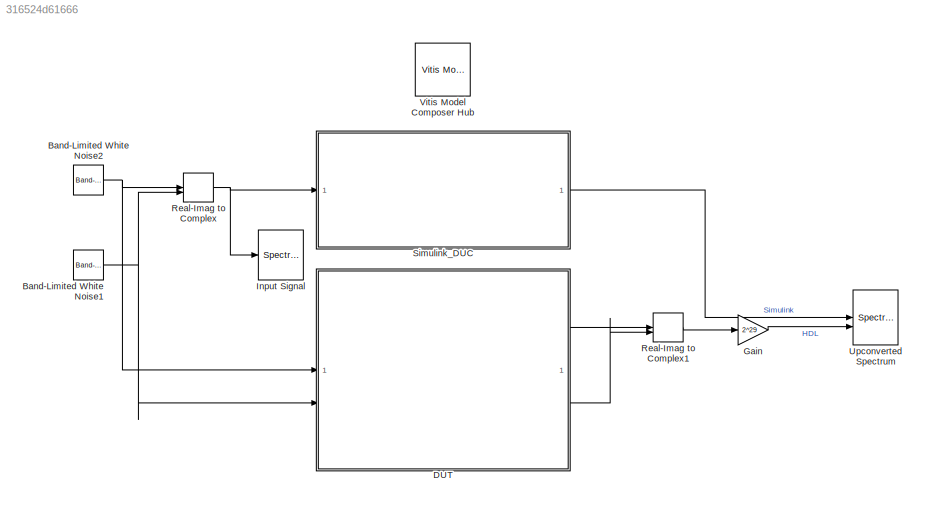
MODEL slx_316524d61666
KIND model
CONFIG AbsTol = auto
CONFIG EnableMultiTasking = off
CONFIG FixedStep = auto
CONFIG InitFcn = sample_period=1/800e6;\ndds=80e6; % ddfs frequency
CONFIG MaxStep = auto
CONFIG MinStep = auto
CONFIG PreLoadFcn = sample_period=1/800e6;\ndds=80e6; % ddfs frequency
CONFIG RelTol = 1e-3
CONFIG SampleTimeConstraint = Unconstrained
CONFIG SolverName = VariableStepAuto
CONFIG StartTime = 0.0
CONFIG StopTime = sample_period*512*150
BLOCK [Reference] Band-Limited White Noise1  REF=simulink/Sources/Band-Limited
White Noise
  SourceBlock = simulink/Sources/Band-Limited\nWhite Noise
  SourceType = Band-Limited White Noise.
BLOCK [Reference] Band-Limited White Noise2  REF=simulink/Sources/Band-Limited
White Noise
  SourceBlock = simulink/Sources/Band-Limited\nWhite Noise
  SourceType = Band-Limited White Noise.
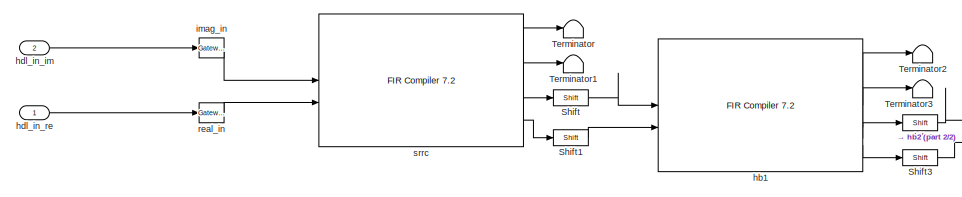
[diagram: DUT - part 1/2, middle left region]
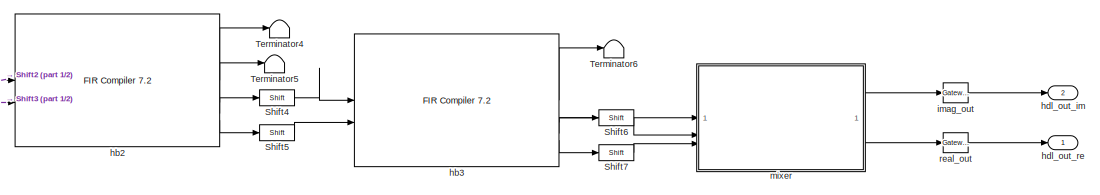
[diagram: DUT - part 2/2, middle right region]
BLOCK [SubSystem] DUT
BLOCK [Reference] DUT/Shift  REF=hdlBasic/Shift
  SourceBlock = hdlBasic/Shift
  SourceType = Binary Shift Operator Block
BLOCK [Reference] DUT/Shift1  REF=hdlBasic/Shift
  SourceBlock = hdlBasic/Shift
  SourceType = Binary Shift Operator Block
BLOCK [Reference] DUT/Shift2  REF=hdlBasic/Shift
  SourceBlock = hdlBasic/Shift
  SourceType = Binary Shift Operator Block
BLOCK [Reference] DUT/Shift3  REF=hdlBasic/Shift
  SourceBlock = hdlBasic/Shift
  SourceType = Binary Shift Operator Block
BLOCK [Reference] DUT/Shift4  REF=hdlBasic/Shift
  SourceBlock = hdlBasic/Shift
  SourceType = Binary Shift Operator Block
BLOCK [Reference] DUT/Shift5  REF=hdlBasic/Shift
  SourceBlock = hdlBasic/Shift
  SourceType = Binary Shift Operator Block
BLOCK [Reference] DUT/Shift6  REF=hdlBasic/Shift
  SourceBlock = hdlBasic/Shift
  SourceType = Binary Shift Operator Block
BLOCK [Reference] DUT/Shift7  REF=hdlBasic/Shift
  SourceBlock = hdlBasic/Shift
  SourceType = Binary Shift Operator Block
BLOCK [Terminator] DUT/Terminator
BLOCK [Terminator] DUT/Terminator1
BLOCK [Terminator] DUT/Terminator2
BLOCK [Terminator] DUT/Terminator3
BLOCK [Terminator] DUT/Terminator4
BLOCK [Terminator] DUT/Terminator5
BLOCK [Terminator] DUT/Terminator6
BLOCK [Reference] DUT/hb1  REF=hdlDSPIP/FIR Compiler 7.2 
  SourceBlock = hdlDSPIP/FIR Compiler 7.2
  SourceType = FIR Compiler 7.2 Block
BLOCK [Reference] DUT/hb2  REF=hdlDSPIP/FIR Compiler 7.2 
  SourceBlock = hdlDSPIP/FIR Compiler 7.2
  SourceType = FIR Compiler 7.2 Block
BLOCK [Reference] DUT/hb3  REF=hdlDSPIP/FIR Compiler 7.2 
  SourceBlock = hdlDSPIP/FIR Compiler 7.2
  SourceType = FIR Compiler 7.2 Block
BLOCK [Inport] DUT/hdl_in_im
  Port = 2
BLOCK [Inport] DUT/hdl_in_re
BLOCK [Outport] DUT/hdl_out_im
  Port = 2
BLOCK [Outport] DUT/hdl_out_re
BLOCK [Reference] DUT/imag_in  REF=hdlBasic/Gateway In
  SourceBlock = hdlBasic/Gateway In
  SourceType = Gateway In Block
BLOCK [Reference] DUT/imag_out  REF=hdlBasic/Gateway Out
  SourceBlock = hdlBasic/Gateway Out
  SourceType = Gateway Out Block
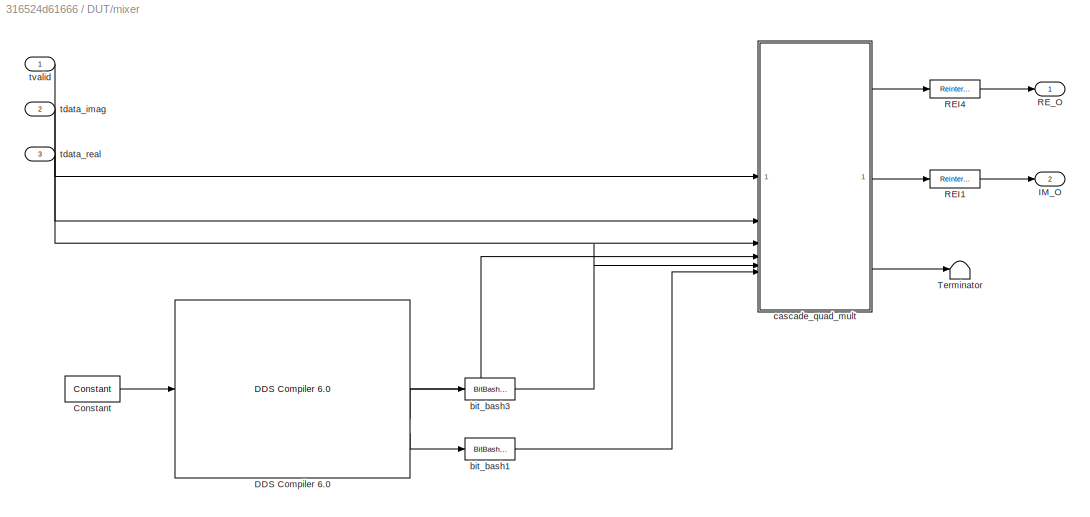
BLOCK [SubSystem] DUT/mixer
BLOCK [Reference] DUT/mixer/Constant  REF=hdlBasic/Constant
  SourceBlock = hdlBasic/Constant
  SourceType = Constant Block Block
BLOCK [Reference] DUT/mixer/DDS Compiler 6.0  REF=hdlDSPIP/DDS Compiler 6.0 
  SourceBlock = hdlDSPIP/DDS Compiler 6.0
  SourceType = DDS Compiler 6.0 Block
BLOCK [Outport] DUT/mixer/IM_O
  Port = 2
BLOCK [Reference] DUT/mixer/REI1  REF=hdlBasic/Reinterpret
  SourceBlock = hdlBasic/Reinterpret
  SourceType = Type Reinterpreter Block
BLOCK [Reference] DUT/mixer/REI4  REF=hdlBasic/Reinterpret
  SourceBlock = hdlBasic/Reinterpret
  SourceType = Type Reinterpreter Block
BLOCK [Outport] DUT/mixer/RE_O
BLOCK [Terminator] DUT/mixer/Terminator
BLOCK [Reference] DUT/mixer/bit_bash1  REF=hdlBasic/BitBasher
  SourceBlock = hdlBasic/BitBasher
  SourceType = BitBasher Block
BLOCK [Reference] DUT/mixer/bit_bash3  REF=hdlBasic/BitBasher
  SourceBlock = hdlBasic/BitBasher
  SourceType = BitBasher Block
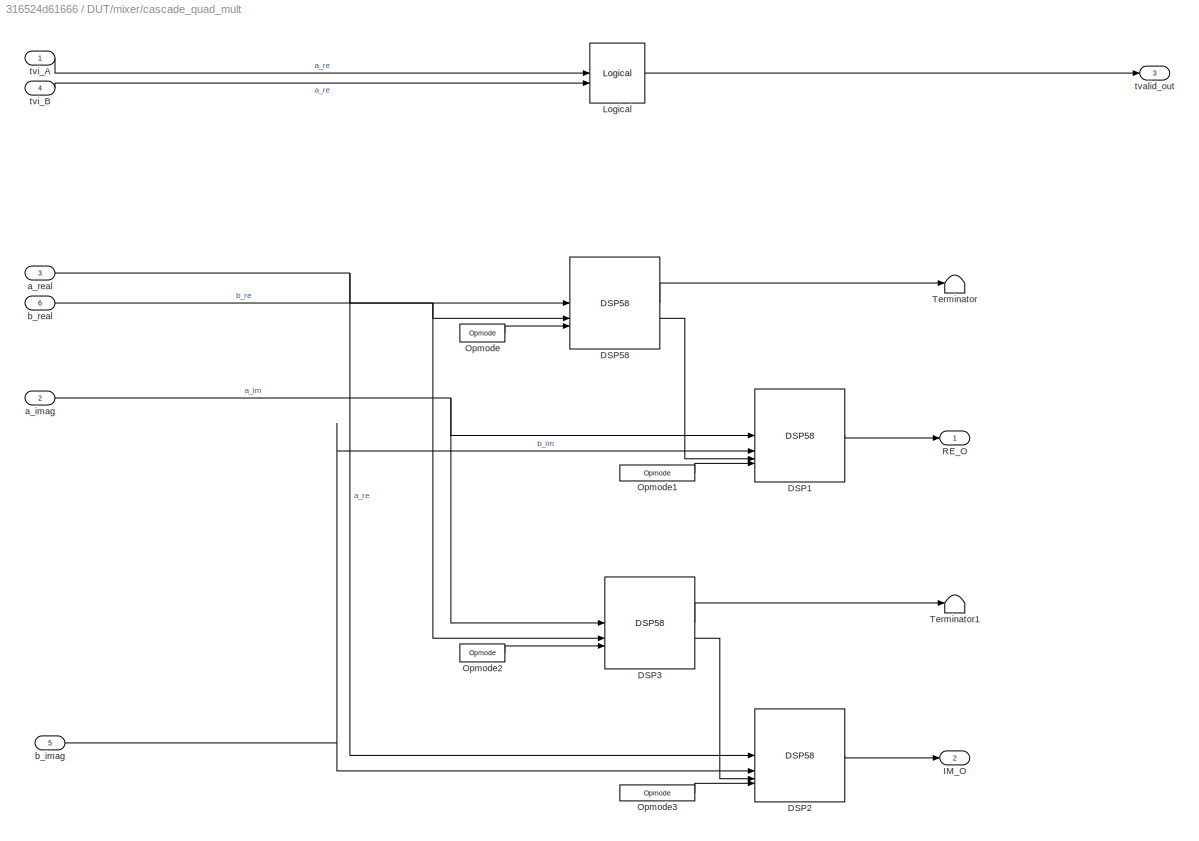
BLOCK [SubSystem] DUT/mixer/cascade_quad_mult
BLOCK [Reference] DUT/mixer/cascade_quad_mult/DSP1  REF=hdlBasic/DSP58 
  SourceBlock = hdlBasic/DSP58
  SourceType = DSP58 Block
BLOCK [Reference] DUT/mixer/cascade_quad_mult/DSP2  REF=hdlBasic/DSP58 
  SourceBlock = hdlBasic/DSP58
  SourceType = DSP58 Block
BLOCK [Reference] DUT/mixer/cascade_quad_mult/DSP3  REF=hdlBasic/DSP58 
  SourceBlock = hdlBasic/DSP58
  SourceType = DSP58 Block
BLOCK [Reference] DUT/mixer/cascade_quad_mult/DSP58  REF=hdlBasic/DSP58 
  SourceBlock = hdlBasic/DSP58
  SourceType = DSP58 Block
BLOCK [Outport] DUT/mixer/cascade_quad_mult/IM_O
  Port = 2
BLOCK [Reference] DUT/mixer/cascade_quad_mult/Logical  REF=hdlBasic/Logical
  SourceBlock = hdlBasic/Logical
  SourceType = Logical Block Block
BLOCK [Reference] DUT/mixer/cascade_quad_mult/Opmode  REF=hdlBasic/Opmode
  SourceBlock = hdlBasic/Opmode
  SourceType = Instruction Block Block
BLOCK [Reference] DUT/mixer/cascade_quad_mult/Opmode1  REF=hdlBasic/Opmode
  SourceBlock = hdlBasic/Opmode
  SourceType = Instruction Block Block
BLOCK [Reference] DUT/mixer/cascade_quad_mult/Opmode2  REF=hdlBasic/Opmode
  SourceBlock = hdlBasic/Opmode
  SourceType = Instruction Block Block
BLOCK [Reference] DUT/mixer/cascade_quad_mult/Opmode3  REF=hdlBasic/Opmode
  SourceBlock = hdlBasic/Opmode
  SourceType = Instruction Block Block
BLOCK [Outport] DUT/mixer/cascade_quad_mult/RE_O
BLOCK [Terminator] DUT/mixer/cascade_quad_mult/Terminator
BLOCK [Terminator] DUT/mixer/cascade_quad_mult/Terminator1
BLOCK [Inport] DUT/mixer/cascade_quad_mult/a_imag
  Port = 2
BLOCK [Inport] DUT/mixer/cascade_quad_mult/a_real
  Port = 3
BLOCK [Inport] DUT/mixer/cascade_quad_mult/b_imag
  Port = 5
BLOCK [Inport] DUT/mixer/cascade_quad_mult/b_real
  Port = 6
BLOCK [Outport] DUT/mixer/cascade_quad_mult/tvalid_out
  Port = 3
BLOCK [Inport] DUT/mixer/cascade_quad_mult/tvi_A
BLOCK [Inport] DUT/mixer/cascade_quad_mult/tvi_B
  Port = 4
BLOCK [Inport] DUT/mixer/tdata_imag
  Port = 2
BLOCK [Inport] DUT/mixer/tdata_real
  Port = 3
BLOCK [Inport] DUT/mixer/tvalid
BLOCK [Reference] DUT/real_in  REF=hdlBasic/Gateway In
  SourceBlock = hdlBasic/Gateway In
  SourceType = Gateway In Block
BLOCK [Reference] DUT/real_out  REF=hdlBasic/Gateway Out
  SourceBlock = hdlBasic/Gateway Out
  SourceType = Gateway Out Block
BLOCK [Reference] DUT/srrc  REF=hdlDSPIP/FIR Compiler 7.2 
  SourceBlock = hdlDSPIP/FIR Compiler 7.2
  SourceType = FIR Compiler 7.2 Block
BLOCK [Gain] Gain
  Gain = 2^29
  OutDataTypeStr = double
BLOCK [SpectrumAnalyzer] Input Signal
  GraphicalSettings = {"GraphicalSettings":{"Style":{"BackgroundColor":[0.12941176470588237,0.12941176470588237,0.12941176470588237],"AxesColor":[0.070588235294117646,0.070588235294117646,0.070588235294117646],"LabelsColor":[0.85098039215686272,0.85098039215686272,0.85098039215686272],"PreserveColors":false,"Visible":true,"LineStyle":["-"],"LineWidth":1.5,"BarWidth":0.9,"LineColor":[1,0.90980392156862744,0.392156862745...<+998ch>
  ScopeFrameLocation = window
  Span = 50000000
  StartFrequency = -25000000
  StopFrequency = 25000000
  Visible = on
  WasSavedAsWebScope = on
  WindowPosition = [540.000000,419.000000,800.000000,500.000000,]
  YLimits = [22.9484,84.9753]
BLOCK [RealImagToComplex] Real-Imag to Complex
BLOCK [RealImagToComplex] Real-Imag to Complex1
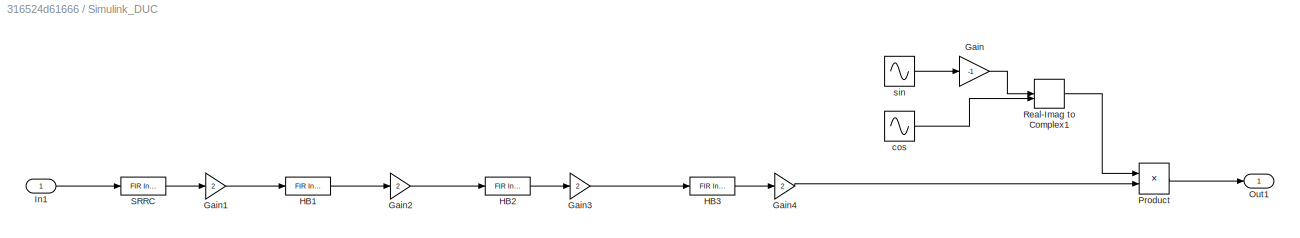
BLOCK [SubSystem] Simulink_DUC
BLOCK [Gain] Simulink_DUC/Gain
  Gain = -1
BLOCK [Gain] Simulink_DUC/Gain1
  Gain = 2
BLOCK [Gain] Simulink_DUC/Gain2
  Gain = 2
BLOCK [Gain] Simulink_DUC/Gain3
  Gain = 2
BLOCK [Gain] Simulink_DUC/Gain4
  Gain = 2
BLOCK [Reference] Simulink_DUC/HB1  REF=dspmlti4/FIR
Interpolation
  SourceBlock = dspmlti4/FIR\nInterpolation
  SourceType = FIR Interpolation
  UserDataPersistent = on
BLOCK [Reference] Simulink_DUC/HB2  REF=dspmlti4/FIR
Interpolation
  SourceBlock = dspmlti4/FIR\nInterpolation
  SourceType = FIR Interpolation
  UserDataPersistent = on
BLOCK [Reference] Simulink_DUC/HB3  REF=dspmlti4/FIR
Interpolation
  SourceBlock = dspmlti4/FIR\nInterpolation
  SourceType = FIR Interpolation
  UserDataPersistent = on
BLOCK [Inport] Simulink_DUC/In1
BLOCK [Outport] Simulink_DUC/Out1
BLOCK [Product] Simulink_DUC/Product
BLOCK [RealImagToComplex] Simulink_DUC/Real-Imag to Complex1
BLOCK [Reference] Simulink_DUC/SRRC  REF=dspmlti4/FIR
Interpolation
  SourceBlock = dspmlti4/FIR\nInterpolation
  SourceType = FIR Interpolation
  UserDataPersistent = on
BLOCK [Sin] Simulink_DUC/cos
  Amplitude = 2^8
  Frequency = 80e6*2*pi
  Phase = pi/2
  SampleTime = sample_period
  VectorParams1D = off
BLOCK [Sin] Simulink_DUC/sin
  Amplitude = 2^8
  Frequency = 80e6*2*pi
  SampleTime = sample_period
  VectorParams1D = off
BLOCK [SpectrumAnalyzer] Upconverted Spectrum
  AllowFFTLengthLessThanSamplesPerUpdate = on
  AveragingMethod = Exponential
  AxesScaling = Manual
  GraphicalSettings = {"GraphicalSettings":{"Style":{"BackgroundColor":[0.12941176470588237,0.12941176470588237,0.12941176470588237],"AxesColor":[0,0,0],"LabelsColor":[0.68627450980392157,0.68627450980392157,0.68627450980392157],"PreserveColors":false,"Visible":[true,true],"LineStyle":["-","-"],"LineWidth":[0.5,1.5],"BarWidth":[0.9,0.9],"LineColor":[[1,0.90980392156862744,0.39215686274509803],[0.14901960784313725,0.549...<+1041ch>
  NumInputPorts = 2
  SampleRate = 400000000
  ScopeFrameLocation = window
  ScopeSpecificationString = spbscopes.SpectrumAnalyzerBlockCfg('CurrentConfiguration', extmgr.ConfigurationSet(extmgr.Configuration('Core','General UI',true),extmgr.Configuration('Core','Source UI',true),extmgr.Configuration('Sources','WiredSimulink',true),extmgr.Configuration('Visuals','Spectrum',true,'AxesProperties',struct('Color',{[0 0 0],[0 0 0]},'XColor',{[0.686274509803922 0.686274509803922 0.686274509803922],[0.68627...<+2086ch>
  ShowLegend = on
  Span = 800000000
  StartFrequency = -400000000
  StopFrequency = 400000000
  Visible = on
  WasSavedAsWebScope = on
  WindowPosition = [1096.000000,482.000000,820.000000,457.000000,]
  YLimits = [63.6592,220.2056]
BLOCK [Reference] Vitis Model Composer Hub  REF=vmcUtilities/Vitis Model Composer Hub
  SourceBlock = vmcUtilities/Vitis Model Composer Hub
  SourceType = VMC Hub
  Tag = genX
  UserDataPersistent = on
NET Band-Limited White Noise1:1 -> DUT:2, Real-Imag to Complex:2
NET Band-Limited White Noise2:1 -> DUT:1, Real-Imag to Complex:1
LINE DUT/Shift1:1 -> DUT/hb1:2
LINE DUT/Shift2:1 -> DUT/hb2:1
LINE DUT/Shift3:1 -> DUT/hb2:2
LINE DUT/Shift4:1 -> DUT/hb3:1
LINE DUT/Shift5:1 -> DUT/hb3:2
LINE DUT/Shift6:1 -> DUT/mixer:2
LINE DUT/Shift7:1 -> DUT/mixer:3
LINE DUT/Shift:1 -> DUT/hb1:1
LINE DUT/hb1:1 -> DUT/Terminator2:1
LINE DUT/hb1:2 -> DUT/Terminator3:1
LINE DUT/hb1:3 -> DUT/Shift2:1
LINE DUT/hb1:4 -> DUT/Shift3:1
LINE DUT/hb2:1 -> DUT/Terminator4:1
LINE DUT/hb2:2 -> DUT/Terminator5:1
LINE DUT/hb2:3 -> DUT/Shift4:1
LINE DUT/hb2:4 -> DUT/Shift5:1
LINE DUT/hb3:1 -> DUT/Terminator6:1
LINE DUT/hb3:2 -> DUT/mixer:1
LINE DUT/hb3:3 -> DUT/Shift6:1
LINE DUT/hb3:4 -> DUT/Shift7:1
LINE DUT/hdl_in_im:1 -> DUT/imag_in:1
LINE DUT/hdl_in_re:1 -> DUT/real_in:1
LINE DUT/imag_in:1 -> DUT/srrc:1
LINE DUT/imag_out:1 -> DUT/hdl_out_im:1
LINE DUT/mixer/Constant:1 -> DUT/mixer/DDS Compiler 6.0:1
LINE DUT/mixer/DDS Compiler 6.0:1 -> DUT/mixer/cascade_quad_mult:4
LINE DUT/mixer/DDS Compiler 6.0:2 -> DUT/mixer/bit_bash3:1
LINE DUT/mixer/DDS Compiler 6.0:3 -> DUT/mixer/bit_bash1:1
LINE DUT/mixer/REI1:1 -> DUT/mixer/IM_O:1
LINE DUT/mixer/REI4:1 -> DUT/mixer/RE_O:1
LINE DUT/mixer/bit_bash1:1 -> DUT/mixer/cascade_quad_mult:6
LINE DUT/mixer/bit_bash3:1 -> DUT/mixer/cascade_quad_mult:5
LINE DUT/mixer/cascade_quad_mult/DSP1:1 -> DUT/mixer/cascade_quad_mult/RE_O:1
LINE DUT/mixer/cascade_quad_mult/DSP2:1 -> DUT/mixer/cascade_quad_mult/IM_O:1
LINE DUT/mixer/cascade_quad_mult/DSP3:1 -> DUT/mixer/cascade_quad_mult/Terminator1:1
LINE DUT/mixer/cascade_quad_mult/DSP3:2 -> DUT/mixer/cascade_quad_mult/DSP2:3
LINE DUT/mixer/cascade_quad_mult/DSP58:1 -> DUT/mixer/cascade_quad_mult/Terminator:1
LINE DUT/mixer/cascade_quad_mult/DSP58:2 -> DUT/mixer/cascade_quad_mult/DSP1:3
LINE DUT/mixer/cascade_quad_mult/Logical:1 -> DUT/mixer/cascade_quad_mult/tvalid_out:1
LINE DUT/mixer/cascade_quad_mult/Opmode1:1 -> DUT/mixer/cascade_quad_mult/DSP1:4
LINE DUT/mixer/cascade_quad_mult/Opmode2:1 -> DUT/mixer/cascade_quad_mult/DSP3:3
LINE DUT/mixer/cascade_quad_mult/Opmode3:1 -> DUT/mixer/cascade_quad_mult/DSP2:4
LINE DUT/mixer/cascade_quad_mult/Opmode:1 -> DUT/mixer/cascade_quad_mult/DSP58:3
NET DUT/mixer/cascade_quad_mult/a_imag:1 -> DUT/mixer/cascade_quad_mult/DSP1:1, DUT/mixer/cascade_quad_mult/DSP3:1
NET DUT/mixer/cascade_quad_mult/a_real:1 -> DUT/mixer/cascade_quad_mult/DSP2:1, DUT/mixer/cascade_quad_mult/DSP58:1
NET DUT/mixer/cascade_quad_mult/b_imag:1 -> DUT/mixer/cascade_quad_mult/DSP1:2, DUT/mixer/cascade_quad_mult/DSP2:2
NET DUT/mixer/cascade_quad_mult/b_real:1 -> DUT/mixer/cascade_quad_mult/DSP3:2, DUT/mixer/cascade_quad_mult/DSP58:2
LINE DUT/mixer/cascade_quad_mult/tvi_A:1 -> DUT/mixer/cascade_quad_mult/Logical:1
LINE DUT/mixer/cascade_quad_mult/tvi_B:1 -> DUT/mixer/cascade_quad_mult/Logical:2
LINE DUT/mixer/cascade_quad_mult:1 -> DUT/mixer/REI4:1
LINE DUT/mixer/cascade_quad_mult:2 -> DUT/mixer/REI1:1
LINE DUT/mixer/cascade_quad_mult:3 -> DUT/mixer/Terminator:1
LINE DUT/mixer/tdata_imag:1 -> DUT/mixer/cascade_quad_mult:2
LINE DUT/mixer/tdata_real:1 -> DUT/mixer/cascade_quad_mult:3
LINE DUT/mixer/tvalid:1 -> DUT/mixer/cascade_quad_mult:1
LINE DUT/mixer:1 -> DUT/imag_out:1
LINE DUT/mixer:2 -> DUT/real_out:1
LINE DUT/real_in:1 -> DUT/srrc:2
LINE DUT/real_out:1 -> DUT/hdl_out_re:1
LINE DUT/srrc:1 -> DUT/Terminator:1
LINE DUT/srrc:2 -> DUT/Terminator1:1
LINE DUT/srrc:3 -> DUT/Shift:1
LINE DUT/srrc:4 -> DUT/Shift1:1
LINE DUT:1 -> Real-Imag to Complex1:1
LINE DUT:2 -> Real-Imag to Complex1:2
LINE Gain:1 -> Upconverted Spectrum:2
LINE Real-Imag to Complex1:1 -> Gain:1
NET Real-Imag to Complex:1 -> Input Signal:1, Simulink_DUC:1
LINE Simulink_DUC/Gain1:1 -> Simulink_DUC/HB1:1
LINE Simulink_DUC/Gain2:1 -> Simulink_DUC/HB2:1
LINE Simulink_DUC/Gain3:1 -> Simulink_DUC/HB3:1
LINE Simulink_DUC/Gain4:1 -> Simulink_DUC/Product:2
LINE Simulink_DUC/Gain:1 -> Simulink_DUC/Real-Imag to Complex1:1
LINE Simulink_DUC/HB1:1 -> Simulink_DUC/Gain2:1
LINE Simulink_DUC/HB2:1 -> Simulink_DUC/Gain3:1
LINE Simulink_DUC/HB3:1 -> Simulink_DUC/Gain4:1
LINE Simulink_DUC/In1:1 -> Simulink_DUC/SRRC:1
LINE Simulink_DUC/Product:1 -> Simulink_DUC/Out1:1
LINE Simulink_DUC/Real-Imag to Complex1:1 -> Simulink_DUC/Product:1
LINE Simulink_DUC/SRRC:1 -> Simulink_DUC/Gain1:1
LINE Simulink_DUC/cos:1 -> Simulink_DUC/Real-Imag to Complex1:2
LINE Simulink_DUC/sin:1 -> Simulink_DUC/Gain:1
LINE Simulink_DUC:1 -> Upconverted Spectrum:1
note: NET lines group one-source signal fan-out (src -> all destinations, sorted); 1:1 wires keep LINE
